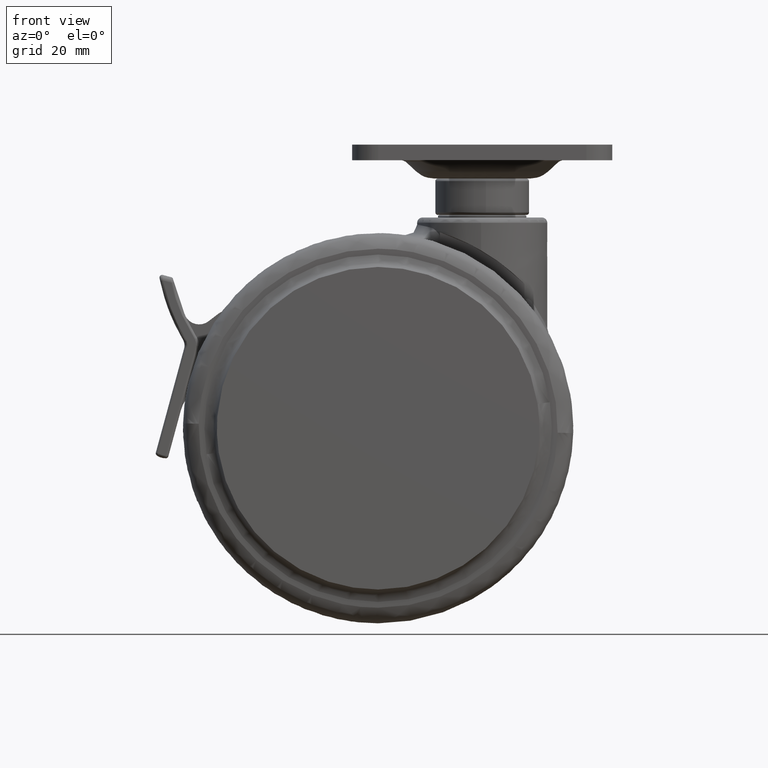
[diagram: clean part render]
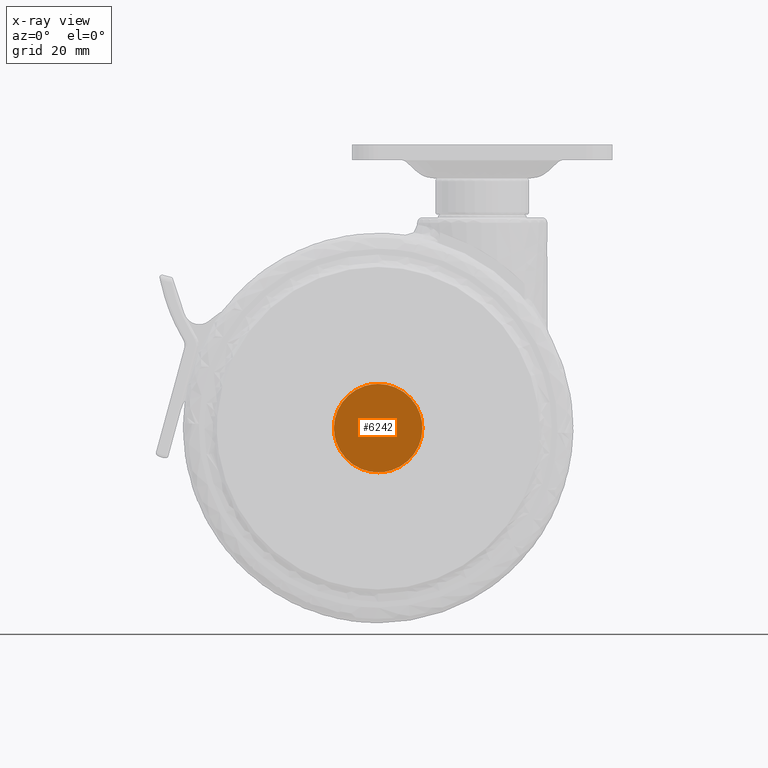
[diagram: x-ray — body ghosted, one internal face saturated and labeled with its STEP entity id]
A machine part, front view, then the same camera in x-ray: the body is ghosted and one INTERNAL B-rep face — a face not visible from any outside direction — is saturated and labeled: STEP entity #6242.
In plain terms, the highlighted face is a freeform B-spline surface patch.
Its self-contained STEP definition (entity closure, byte-faithful):
#6171=CARTESIAN_POINT('',(-10.651588200941219,8.0,-49.849149967050700));
#6172=CARTESIAN_POINT('',(-10.651588200941219,8.0,-31.150849576973769));
#6173=CARTESIAN_POINT('',(-29.348412254998319,8.0,-49.849149967050700));
#6174=CARTESIAN_POINT('',(-29.348412254998319,8.0,-31.150849576973769));
#6175=B_SPLINE_SURFACE_WITH_KNOTS('',1,1,((#6171,#6173),(#6172,#6174)),.UNSPECIFIED.,.F.,.F.,.U.,(2,2),(2,2),(0.0,18.698300390076930),(0.0,18.696824054057100),.UNSPECIFIED.);
#6176=CARTESIAN_POINT('',(-28.499328877175639,8.000000000000007,-40.393188661007137));
#6177=VERTEX_POINT('',#6176);
#6178=CARTESIAN_POINT('',(-20.0,8.0,-32.0));
#6179=VERTEX_POINT('',#6178);
#6180=CARTESIAN_POINT('',(-28.499328877175639,8.000000000000007,-40.393188661007144));
#6181=CARTESIAN_POINT('',(-28.393851404966924,8.000000000000004,-31.999999999990941));
#6182=CARTESIAN_POINT('',(-20.0,8.0,-32.0));
#6190=(BOUNDED_CURVE()B_SPLINE_CURVE(2,(#6180,#6181,#6182),.UNSPECIFIED.,.F.,.U.)B_SPLINE_CURVE_WITH_KNOTS((3,3),(0.752215704077573,1.0),.UNSPECIFIED.)CURVE()GEOMETRIC_REPRESENTATION_ITEM()RATIONAL_B_SPLINE_CURVE((0.994854295645621,0.709702639983421,1.0))REPRESENTATION_ITEM(''));
#6191=EDGE_CURVE('',#6177,#6179,#6190,.T.);
#6192=ORIENTED_EDGE('',*,*,#6191,.F.);
#6193=CARTESIAN_POINT('',(-20.0,8.0,-49.0));
#6194=VERTEX_POINT('',#6193);
#6195=CARTESIAN_POINT('',(-20.0,8.0,-49.0));
#6196=CARTESIAN_POINT('',(-28.500000000712387,8.000000000000004,-48.999999999991047));
#6197=CARTESIAN_POINT('',(-28.500000001433769,8.000000000000007,-40.499999999981988));
#6198=CARTESIAN_POINT('',(-28.500000001438295,8.000000000000007,-40.446592222067764));
#6199=CARTESIAN_POINT('',(-28.499328877175639,8.000000000000007,-40.393188661007144));
#6207=(BOUNDED_CURVE()B_SPLINE_CURVE(2,(#6195,#6196,#6197,#6198,#6199),.UNSPECIFIED.,.F.,.U.)B_SPLINE_CURVE_WITH_KNOTS((3,2,3),(0.500000000000000,0.750000000000000,0.752215704077573),.UNSPECIFIED.)CURVE()GEOMETRIC_REPRESENTATION_ITEM()RATIONAL_B_SPLINE_CURVE((1.0,0.707106781186548,1.0,0.997404141203126,0.994854295645621))REPRESENTATION_ITEM(''));
#6208=EDGE_CURVE('',#6194,#6177,#6207,.T.);
#6209=ORIENTED_EDGE('',*,*,#6208,.F.);
#6210=CARTESIAN_POINT('',(-11.500671122824370,7.999999999999994,-40.606811338992863));
#6211=VERTEX_POINT('',#6210);
#6212=CARTESIAN_POINT('',(-11.500671122824370,7.999999999999994,-40.606811338992863));
#6213=CARTESIAN_POINT('',(-11.606148595033089,7.999999999999997,-49.000000000009088));
#6214=CARTESIAN_POINT('',(-20.0,8.0,-49.0));
#6222=(BOUNDED_CURVE()B_SPLINE_CURVE(2,(#6212,#6213,#6214),.UNSPECIFIED.,.F.,.U.)B_SPLINE_CURVE_WITH_KNOTS((3,3),(0.252215704077573,0.500000000000000),.UNSPECIFIED.)CURVE()GEOMETRIC_REPRESENTATION_ITEM()RATIONAL_B_SPLINE_CURVE((0.994854295645621,0.709702639983421,1.0))REPRESENTATION_ITEM(''));
#6223=EDGE_CURVE('',#6211,#6194,#6222,.T.);
#6224=ORIENTED_EDGE('',*,*,#6223,.F.);
#6225=CARTESIAN_POINT('',(-20.0,8.0,-32.0));
#6226=CARTESIAN_POINT('',(-11.499999999287622,7.999999999999997,-32.000000000008946));
#6227=CARTESIAN_POINT('',(-11.499999998566240,7.999999999999994,-40.500000000018019));
#6228=CARTESIAN_POINT('',(-11.499999998561703,7.999999999999994,-40.553407777932257));
#6229=CARTESIAN_POINT('',(-11.500671122824370,7.999999999999994,-40.606811338992863));
#6237=(BOUNDED_CURVE()B_SPLINE_CURVE(2,(#6225,#6226,#6227,#6228,#6229),.UNSPECIFIED.,.F.,.U.)B_SPLINE_CURVE_WITH_KNOTS((3,2,3),(0.0,0.250000000000000,0.252215704077573),.UNSPECIFIED.)CURVE()GEOMETRIC_REPRESENTATION_ITEM()RATIONAL_B_SPLINE_CURVE((1.0,0.707106781186548,1.0,0.997404141203126,0.994854295645621))REPRESENTATION_ITEM(''));
#6238=EDGE_CURVE('',#6179,#6211,#6237,.T.);
#6239=ORIENTED_EDGE('',*,*,#6238,.F.);
#6240=EDGE_LOOP('',(#6192,#6209,#6224,#6239));
#6241=FACE_OUTER_BOUND('',#6240,.T.);
#6242=ADVANCED_FACE('',(#6241),#6175,.T.);